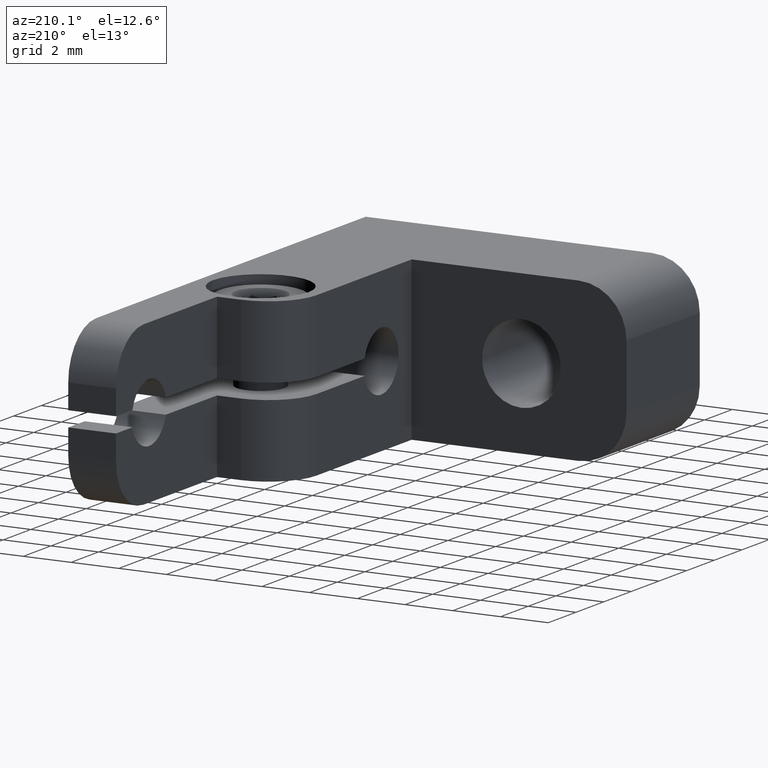
[diagram: clean part render]
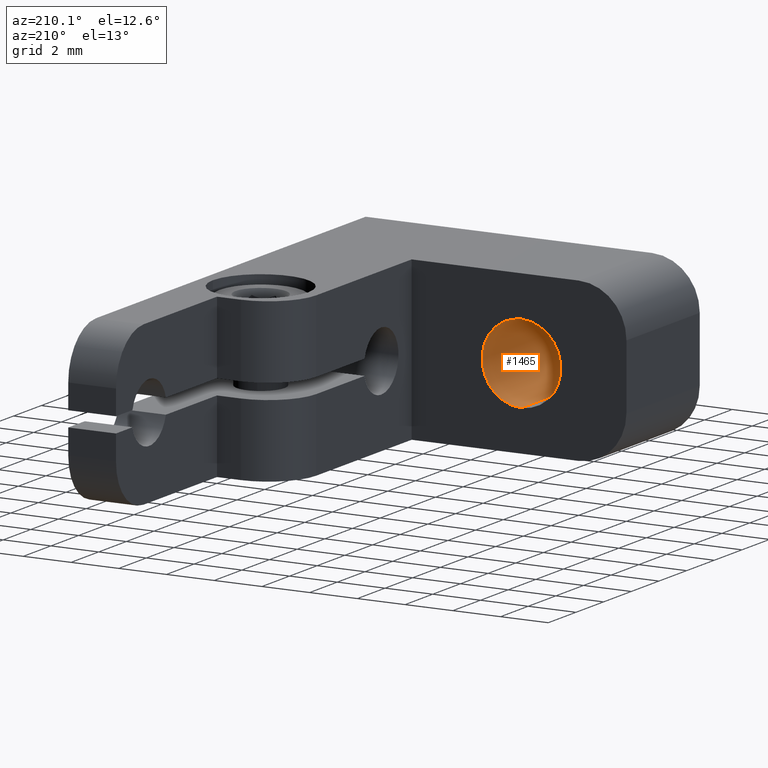
[diagram: same view with one face highlighted and labeled with its STEP entity id]
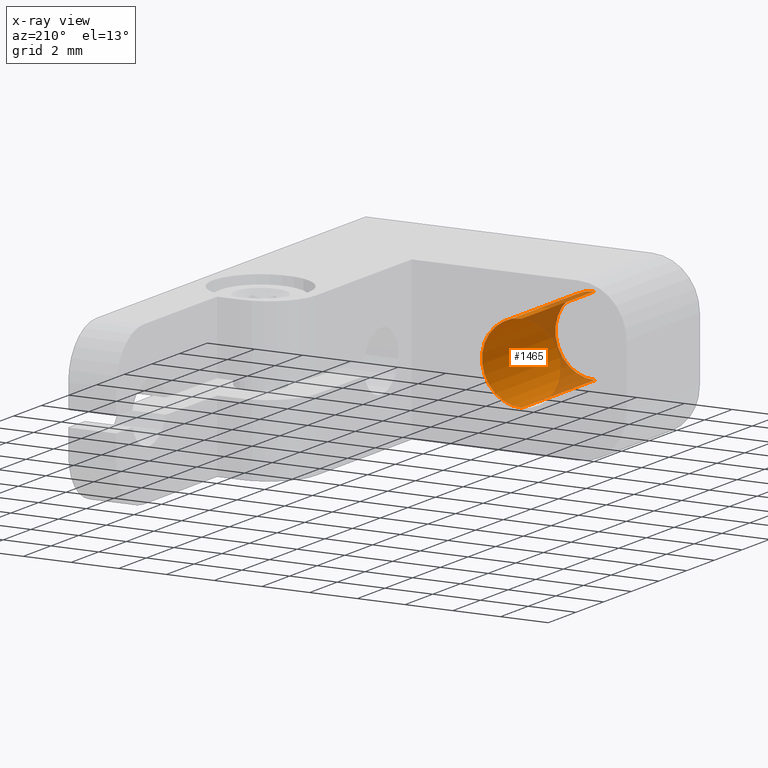
[diagram: x-ray of the same camera — body ghosted, the highlighted face saturated]
A machine part, auxiliary view. The second image highlights one B-rep face of the part: STEP entity #1465.
The next image is the same camera in x-ray: the body ghosted, the highlighted face saturated — about 20% of this face is hidden behind the body in this view.
In plain terms, the highlighted cylindrical surface (partial cylindrical patch) has radius 1.65 mm, axis along (-0, -1, -0).
Its self-contained STEP definition (entity closure, byte-faithful):
#90 = CARTESIAN_POINT ( 'NONE',  ( -9.599999999999999645, -1.353234713057822322E-15, 4.336808689942017736E-16 ) ) ;
#134 = DIRECTION ( 'NONE',  ( 0.000000000000000000, -1.000000000000000000, 0.000000000000000000 ) ) ;
#172 = EDGE_CURVE ( 'NONE', #445, #462, #1527, .T. ) ;
#221 = CARTESIAN_POINT ( 'NONE',  ( -9.599999999999999645, 0.000000000000000000, 4.336808689942017736E-16 ) ) ;
#249 = EDGE_LOOP ( 'NONE', ( #427, #724, #663, #1514 ) ) ;
#369 = VECTOR ( 'NONE', #1712, 1000.000000000000000 ) ;
#374 = VERTEX_POINT ( 'NONE', #1951 ) ;
#409 = CIRCLE ( 'NONE', #1638, 1.649999999999988365 ) ;
#427 = ORIENTED_EDGE ( 'NONE', *, *, #172, .F. ) ;
#445 = VERTEX_POINT ( 'NONE', #1182 ) ;
#462 = VERTEX_POINT ( 'NONE', #636 ) ;
#537 = DIRECTION ( 'NONE',  ( 0.000000000000000000, 0.000000000000000000, -1.000000000000000000 ) ) ;
#622 = CARTESIAN_POINT ( 'NONE',  ( -9.599999999999999645, 5.299999999999999822, 4.336808689942017736E-16 ) ) ;
#636 = CARTESIAN_POINT ( 'NONE',  ( -9.599999999999999645, -1.353234713057822322E-15, 1.649999999999988809 ) ) ;
#663 = ORIENTED_EDGE ( 'NONE', *, *, #1309, .T. ) ;
#724 = ORIENTED_EDGE ( 'NONE', *, *, #856, .F. ) ;
#856 = EDGE_CURVE ( 'NONE', #374, #445, #1639, .T. ) ;
#881 = AXIS2_PLACEMENT_3D ( 'NONE', #221, #1228, #537 ) ;
#1078 = DIRECTION ( 'NONE',  ( -0.000000000000000000, -1.000000000000000000, -0.000000000000000000 ) ) ;
#1153 = EDGE_CURVE ( 'NONE', #1618, #462, #409, .T. ) ;
#1182 = CARTESIAN_POINT ( 'NONE',  ( -9.599999999999999645, 5.299999999999999822, 1.649999999999993916 ) ) ;
#1228 = DIRECTION ( 'NONE',  ( -0.000000000000000000, -1.000000000000000000, -0.000000000000000000 ) ) ;
#1238 = DIRECTION ( 'NONE',  ( 0.000000000000000000, 0.000000000000000000, -1.000000000000000000 ) ) ;
#1291 = VECTOR ( 'NONE', #1968, 1000.000000000000000 ) ;
#1309 = EDGE_CURVE ( 'NONE', #374, #1618, #1466, .T. ) ;
#1361 = AXIS2_PLACEMENT_3D ( 'NONE', #622, #134, #2163 ) ;
#1403 = CYLINDRICAL_SURFACE ( 'NONE', #881, 1.649999999999993472 ) ;
#1465 = ADVANCED_FACE ( 'NONE', ( #1756 ), #1403, .F. ) ;
#1466 = LINE ( 'NONE', #1871, #1291 ) ;
#1514 = ORIENTED_EDGE ( 'NONE', *, *, #1153, .T. ) ;
#1527 = LINE ( 'NONE', #1902, #369 ) ;
#1618 = VERTEX_POINT ( 'NONE', #2119 ) ;
#1638 = AXIS2_PLACEMENT_3D ( 'NONE', #90, #1078, #1238 ) ;
#1639 = CIRCLE ( 'NONE', #1361, 1.649999999999993472 ) ;
#1712 = DIRECTION ( 'NONE',  ( -0.000000000000000000, -1.000000000000000000, -0.000000000000000000 ) ) ;
#1756 = FACE_OUTER_BOUND ( 'NONE', #249, .T. ) ;
#1871 = CARTESIAN_POINT ( 'NONE',  ( -9.599999999999999645, 0.000000000000000000, -1.649999999999993028 ) ) ;
#1902 = CARTESIAN_POINT ( 'NONE',  ( -9.599999999999999645, 0.000000000000000000, 1.649999999999993916 ) ) ;
#1951 = CARTESIAN_POINT ( 'NONE',  ( -9.599999999999999645, 5.299999999999999822, -1.649999999999993028 ) ) ;
#1968 = DIRECTION ( 'NONE',  ( -0.000000000000000000, -1.000000000000000000, -0.000000000000000000 ) ) ;
#2119 = CARTESIAN_POINT ( 'NONE',  ( -9.599999999999999645, -1.353234713057822322E-15, -1.649999999999987921 ) ) ;
#2163 = DIRECTION ( 'NONE',  ( 0.000000000000000000, 0.000000000000000000, -1.000000000000000000 ) ) ;